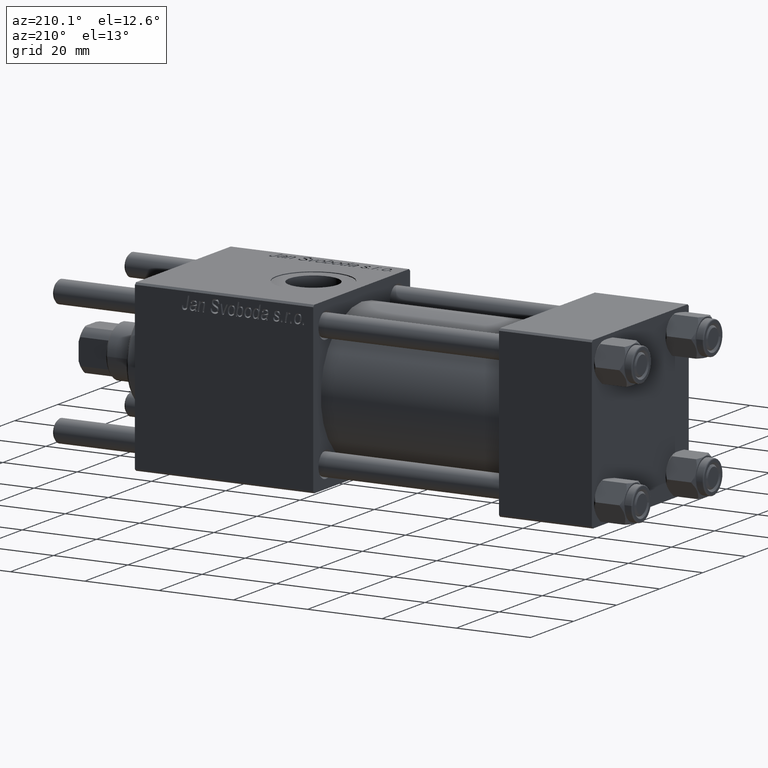
[diagram: clean part render]
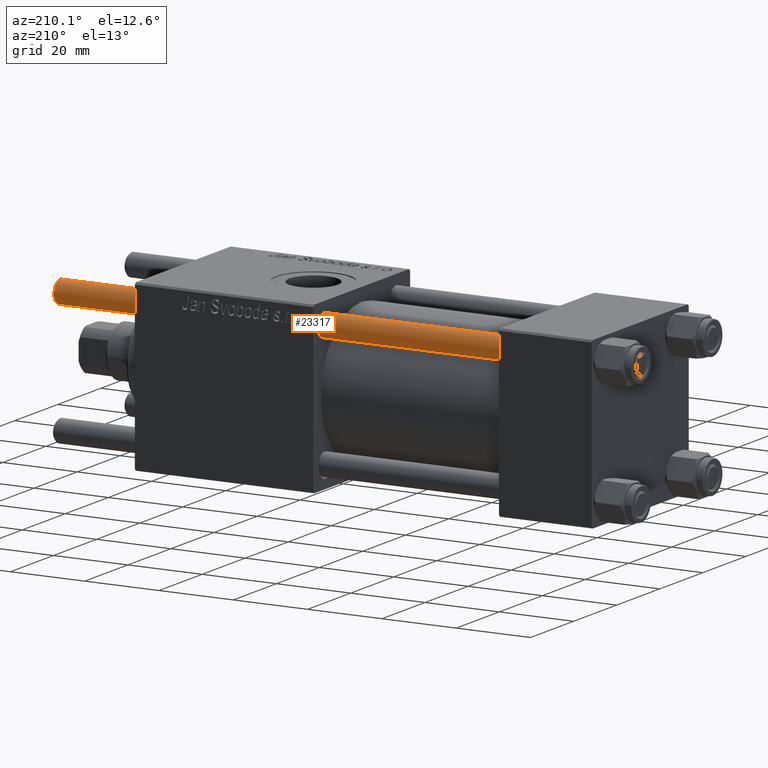
[diagram: same view with one face highlighted and labeled with its STEP entity id]
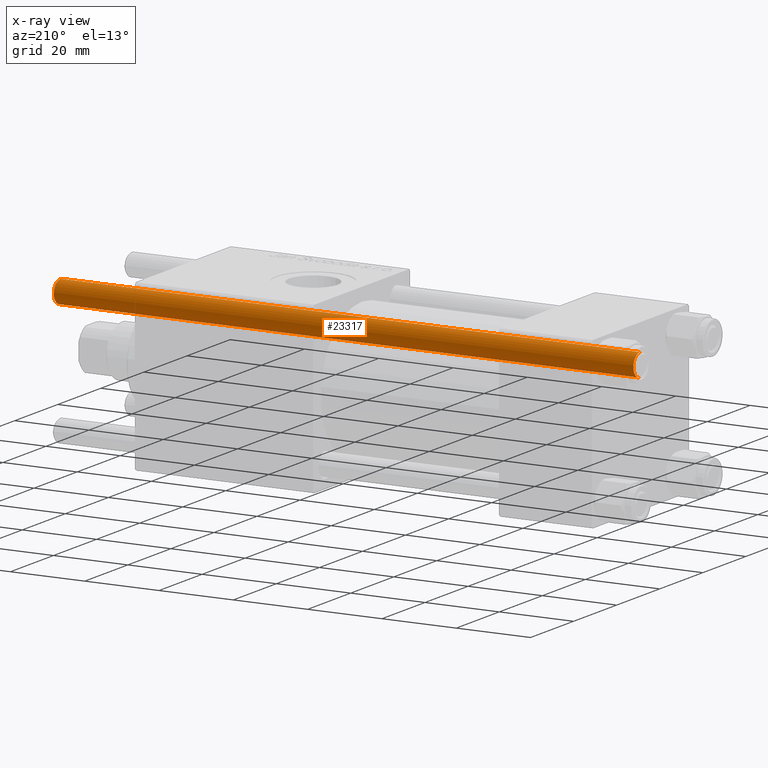
[diagram: x-ray of the same camera — body ghosted, the highlighted face saturated]
A machine part, auxiliary view. The second image highlights one B-rep face of the part: STEP entity #23317.
The next image is the same camera in x-ray: the body ghosted, the highlighted face saturated — about 0% of this face is hidden behind the body in this view.
In plain terms, the highlighted cylindrical surface (edge-blend (fillet) strip) has radius 3 mm, axis along (1, -0, -0).
Its self-contained STEP definition (entity closure, byte-faithful):
#2417 = DIRECTION ( 'NONE',  ( -0.000000000000000000, -0.000000000000000000, -1.000000000000000000 ) ) ;
#6151 = CIRCLE ( 'NONE', #9847, 3.000000000000000444 ) ;
#7112 = EDGE_CURVE ( 'NONE', #38751, #15587, #46487, .T. ) ;
#9847 = AXIS2_PLACEMENT_3D ( 'NONE', #19321, #27955, #36887 ) ;
#14677 = DIRECTION ( 'NONE',  ( -0.000000000000000000, -0.000000000000000000, -1.000000000000000000 ) ) ;
#15587 = VERTEX_POINT ( 'NONE', #51477 ) ;
#17424 = ORIENTED_EDGE ( 'NONE', *, *, #7112, .T. ) ;
#18174 = CIRCLE ( 'NONE', #36607, 3.000000000000000444 ) ;
#18974 = DIRECTION ( 'NONE',  ( -1.000000000000000000, 0.000000000000000000, 0.000000000000000000 ) ) ;
#19273 = FACE_OUTER_BOUND ( 'NONE', #32867, .T. ) ;
#19321 = CARTESIAN_POINT ( 'NONE',  ( 0.000000000000000000, 0.000000000000000000, 0.4999999999999726885 ) ) ;
#23317 = ADVANCED_FACE ( 'NONE', ( #19273 ), #37125, .T. ) ;
#23673 = AXIS2_PLACEMENT_3D ( 'NONE', #53844, #14677, #18974 ) ;
#24589 = CARTESIAN_POINT ( 'NONE',  ( 3.000000000000000444, 3.673940397442060361E-16, 157.0000000000000000 ) ) ;
#25208 = EDGE_CURVE ( 'NONE', #25898, #38751, #18174, .T. ) ;
#25571 = CARTESIAN_POINT ( 'NONE',  ( 3.000000000000000444, 3.673940397442060361E-16, 156.5000000000000284 ) ) ;
#25682 = CARTESIAN_POINT ( 'NONE',  ( 0.000000000000000000, 0.000000000000000000, 156.5000000000000284 ) ) ;
#25898 = VERTEX_POINT ( 'NONE', #47153 ) ;
#27220 = EDGE_CURVE ( 'NONE', #25898, #37781, #32608, .T. ) ;
#27955 = DIRECTION ( 'NONE',  ( -0.000000000000000000, -0.000000000000000000, 1.000000000000000000 ) ) ;
#28970 = CARTESIAN_POINT ( 'NONE',  ( -3.000000000000000444, 0.000000000000000000, 0.4999999999999726885 ) ) ;
#29279 = VECTOR ( 'NONE', #2417, 1000.000000000000000 ) ;
#29407 = ORIENTED_EDGE ( 'NONE', *, *, #27220, .F. ) ;
#30542 = DIRECTION ( 'NONE',  ( 1.000000000000000000, 0.000000000000000000, 0.000000000000000000 ) ) ;
#31082 = VECTOR ( 'NONE', #46777, 1000.000000000000000 ) ;
#32608 = LINE ( 'NONE', #45326, #29279 ) ;
#32867 = EDGE_LOOP ( 'NONE', ( #43667, #17424, #41927, #29407 ) ) ;
#36607 = AXIS2_PLACEMENT_3D ( 'NONE', #25682, #38639, #30542 ) ;
#36887 = DIRECTION ( 'NONE',  ( 1.000000000000000000, 0.000000000000000000, 0.000000000000000000 ) ) ;
#37125 = CYLINDRICAL_SURFACE ( 'NONE', #23673, 3.000000000000000444 ) ;
#37781 = VERTEX_POINT ( 'NONE', #28970 ) ;
#38639 = DIRECTION ( 'NONE',  ( 0.000000000000000000, 0.000000000000000000, -1.000000000000000000 ) ) ;
#38751 = VERTEX_POINT ( 'NONE', #25571 ) ;
#41927 = ORIENTED_EDGE ( 'NONE', *, *, #51863, .T. ) ;
#43667 = ORIENTED_EDGE ( 'NONE', *, *, #25208, .T. ) ;
#45326 = CARTESIAN_POINT ( 'NONE',  ( -3.000000000000000444, 0.000000000000000000, 157.0000000000000000 ) ) ;
#46487 = LINE ( 'NONE', #24589, #31082 ) ;
#46777 = DIRECTION ( 'NONE',  ( -0.000000000000000000, -0.000000000000000000, -1.000000000000000000 ) ) ;
#47153 = CARTESIAN_POINT ( 'NONE',  ( -3.000000000000000444, 0.000000000000000000, 156.5000000000000284 ) ) ;
#51477 = CARTESIAN_POINT ( 'NONE',  ( 3.000000000000000444, 3.673940397442060361E-16, 0.4999999999999726885 ) ) ;
#51863 = EDGE_CURVE ( 'NONE', #15587, #37781, #6151, .T. ) ;
#53844 = CARTESIAN_POINT ( 'NONE',  ( 0.000000000000000000, 0.000000000000000000, 157.0000000000000000 ) ) ;